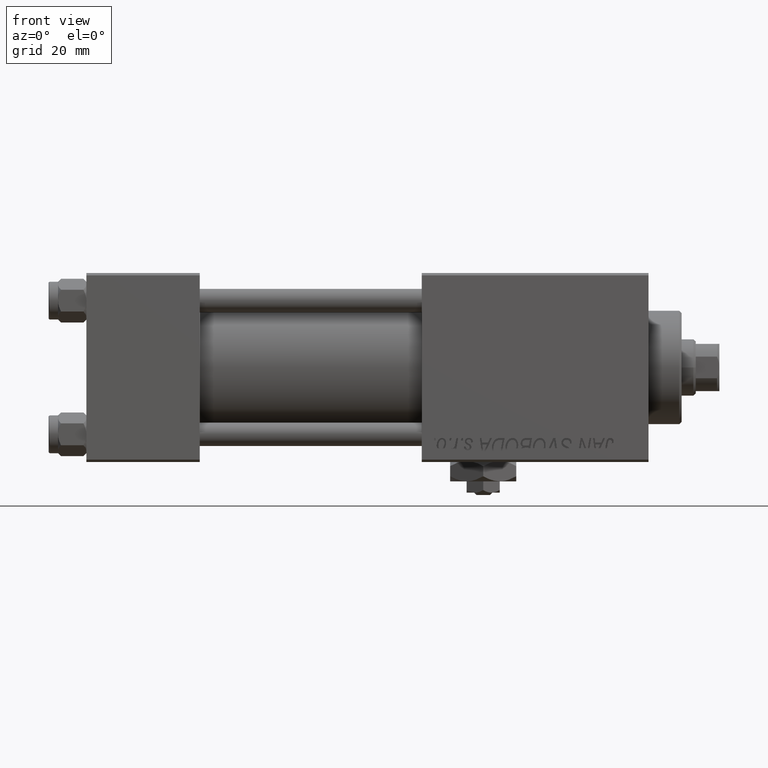
[diagram: clean part render]
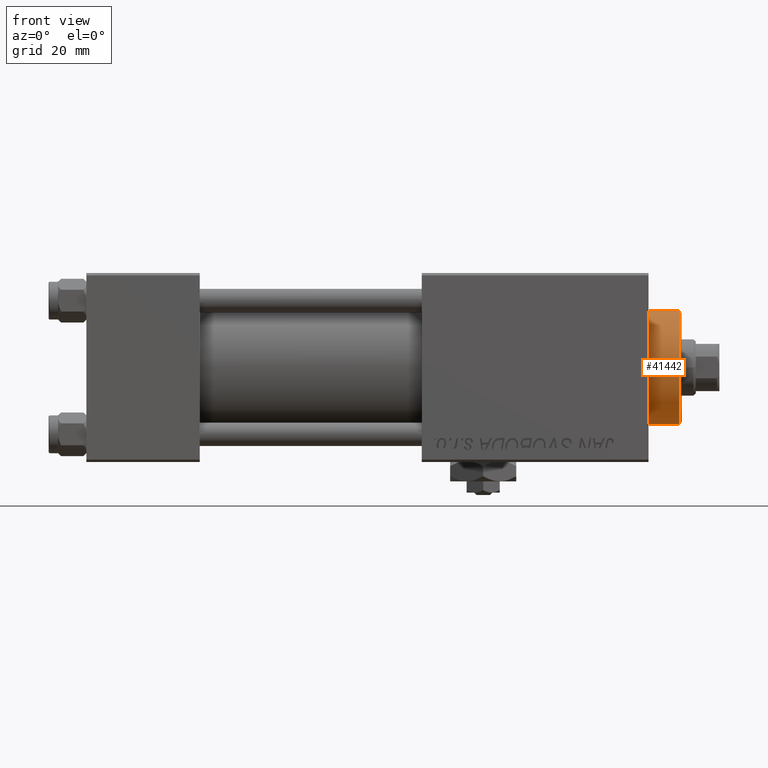
[diagram: same view with one face highlighted and labeled with its STEP entity id]
A machine part, front view. The second image highlights one B-rep face of the part: STEP entity #41442.
In plain terms, the highlighted cylindrical surface (partial cylindrical patch) has radius 12 mm, axis along (-1, -0, -0).
Its self-contained STEP definition (entity closure, byte-faithful):
#294 = VECTOR ( 'NONE', #17520, 1000.000000000000000 ) ;
#4694 = DIRECTION ( 'NONE',  ( 0.000000000000000000, 0.000000000000000000, 1.000000000000000000 ) ) ;
#6543 = DIRECTION ( 'NONE',  ( -1.000000000000000000, 0.000000000000000000, 0.000000000000000000 ) ) ;
#8370 = DIRECTION ( 'NONE',  ( -0.000000000000000000, -0.000000000000000000, -1.000000000000000000 ) ) ;
#8655 = CARTESIAN_POINT ( 'NONE',  ( -12.00000000000000178, 0.000000000000000000, 28.69999999999999929 ) ) ;
#10228 = FACE_OUTER_BOUND ( 'NONE', #23961, .T. ) ;
#12839 = LINE ( 'NONE', #33041, #46977 ) ;
#12969 = EDGE_CURVE ( 'NONE', #32177, #39934, #16051, .T. ) ;
#16051 = CIRCLE ( 'NONE', #43714, 12.00000000000000178 ) ;
#17520 = DIRECTION ( 'NONE',  ( -0.000000000000000000, -0.000000000000000000, -1.000000000000000000 ) ) ;
#20717 = CARTESIAN_POINT ( 'NONE',  ( -12.00000000000000178, 0.000000000000000000, 35.70000000000000284 ) ) ;
#22682 = CARTESIAN_POINT ( 'NONE',  ( 12.00000000000000178, 0.000000000000000000, 28.69999999999999929 ) ) ;
#22782 = ORIENTED_EDGE ( 'NONE', *, *, #27995, .T. ) ;
#23961 = EDGE_LOOP ( 'NONE', ( #35425, #22782, #29370, #25433 ) ) ;
#24686 = CARTESIAN_POINT ( 'NONE',  ( 12.00000000000000178, 1.469576158976824144E-15, 35.19999999999999574 ) ) ;
#25433 = ORIENTED_EDGE ( 'NONE', *, *, #12969, .T. ) ;
#27086 = VERTEX_POINT ( 'NONE', #24686 ) ;
#27995 = EDGE_CURVE ( 'NONE', #27086, #51858, #51712, .T. ) ;
#28591 = CARTESIAN_POINT ( 'NONE',  ( 0.000000000000000000, 0.000000000000000000, 28.69999999999999929 ) ) ;
#29370 = ORIENTED_EDGE ( 'NONE', *, *, #44341, .T. ) ;
#30956 = DIRECTION ( 'NONE',  ( 1.000000000000000000, 0.000000000000000000, 0.000000000000000000 ) ) ;
#31191 = AXIS2_PLACEMENT_3D ( 'NONE', #51190, #42256, #6543 ) ;
#32177 = VERTEX_POINT ( 'NONE', #8655 ) ;
#33041 = CARTESIAN_POINT ( 'NONE',  ( 12.00000000000000178, 1.469576158976824144E-15, 35.70000000000000284 ) ) ;
#34381 = CYLINDRICAL_SURFACE ( 'NONE', #31191, 12.00000000000000178 ) ;
#35148 = CARTESIAN_POINT ( 'NONE',  ( 0.000000000000000000, 0.000000000000000000, 35.19999999999999574 ) ) ;
#35425 = ORIENTED_EDGE ( 'NONE', *, *, #37466, .F. ) ;
#36602 = AXIS2_PLACEMENT_3D ( 'NONE', #35148, #50414, #30956 ) ;
#37466 = EDGE_CURVE ( 'NONE', #27086, #39934, #12839, .T. ) ;
#39934 = VERTEX_POINT ( 'NONE', #22682 ) ;
#41442 = ADVANCED_FACE ( 'NONE', ( #10228 ), #34381, .T. ) ;
#42256 = DIRECTION ( 'NONE',  ( -0.000000000000000000, -0.000000000000000000, -1.000000000000000000 ) ) ;
#43100 = CARTESIAN_POINT ( 'NONE',  ( -12.00000000000000178, 0.000000000000000000, 35.19999999999999574 ) ) ;
#43714 = AXIS2_PLACEMENT_3D ( 'NONE', #28591, #4694, #44609 ) ;
#44341 = EDGE_CURVE ( 'NONE', #51858, #32177, #49567, .T. ) ;
#44609 = DIRECTION ( 'NONE',  ( 1.000000000000000000, 0.000000000000000000, 0.000000000000000000 ) ) ;
#46977 = VECTOR ( 'NONE', #8370, 1000.000000000000000 ) ;
#49567 = LINE ( 'NONE', #20717, #294 ) ;
#50414 = DIRECTION ( 'NONE',  ( 0.000000000000000000, 0.000000000000000000, -1.000000000000000000 ) ) ;
#51190 = CARTESIAN_POINT ( 'NONE',  ( 0.000000000000000000, 0.000000000000000000, 35.70000000000000284 ) ) ;
#51712 = CIRCLE ( 'NONE', #36602, 12.00000000000000178 ) ;
#51858 = VERTEX_POINT ( 'NONE', #43100 ) ;